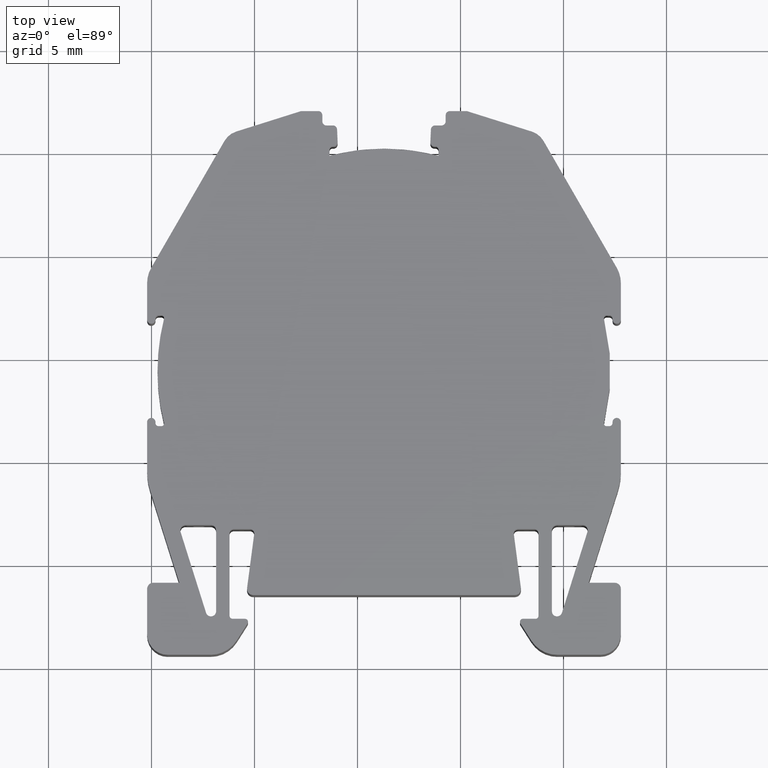
[diagram: clean part render]
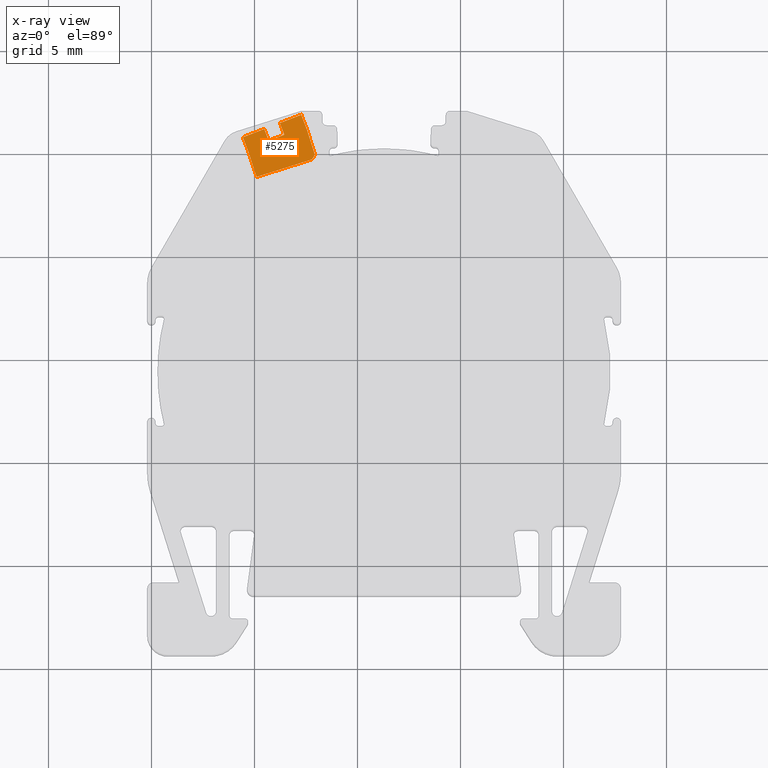
[diagram: x-ray — body ghosted, one internal face saturated and labeled with its STEP entity id]
A machine part, top view, then the same camera in x-ray: the body is ghosted and one INTERNAL B-rep face — a face not visible from any outside direction — is saturated and labeled: STEP entity #5275.
In plain terms, the highlighted planar face has unit normal (0, 0, 1).
Its self-contained STEP definition (entity closure, byte-faithful):
#1390 = ORIENTED_EDGE ( 'NONE', *, *, #5601, .F. ) ;
#1395 = ORIENTED_EDGE ( 'NONE', *, *, #5625, .T. ) ;
#1423 = ORIENTED_EDGE ( 'NONE', *, *, #5602, .T. ) ;
#1424 = ORIENTED_EDGE ( 'NONE', *, *, #5631, .T. ) ;
#1433 = ORIENTED_EDGE ( 'NONE', *, *, #5613, .T. ) ;
#1453 = ORIENTED_EDGE ( 'NONE', *, *, #5621, .F. ) ;
#1457 = ORIENTED_EDGE ( 'NONE', *, *, #5585, .T. ) ;
#1466 = ORIENTED_EDGE ( 'NONE', *, *, #5531, .T. ) ;
#1487 = ORIENTED_EDGE ( 'NONE', *, *, #5589, .T. ) ;
#1488 = ORIENTED_EDGE ( 'NONE', *, *, #5556, .T. ) ;
#1491 = ORIENTED_EDGE ( 'NONE', *, *, #5586, .T. ) ;
#1492 = ORIENTED_EDGE ( 'NONE', *, *, #5566, .T. ) ;
#2164 = CARTESIAN_POINT ( 'NONE',  ( 287.5503515056036000, 456.0987432950590800, -46.62999999999999500 ) ) ;
#2167 = CARTESIAN_POINT ( 'NONE',  ( 284.6917076357059400, 455.0740607454300200, -46.62999999999999500 ) ) ;
#2171 = CARTESIAN_POINT ( 'NONE',  ( 286.2285795155161700, 456.4355953829590900, -46.62999999999999500 ) ) ;
#2180 = CARTESIAN_POINT ( 'NONE',  ( 284.4335445907127000, 455.7465660464790700, -46.62999999999999500 ) ) ;
#2199 = CARTESIAN_POINT ( 'NONE',  ( 285.6904381836150200, 455.5786382979360400, -46.62999999999999500 ) ) ;
#2203 = CARTESIAN_POINT ( 'NONE',  ( 285.4728342311639700, 456.1454996262940500, -46.62999999999999500 ) ) ;
#2205 = CARTESIAN_POINT ( 'NONE',  ( 286.4461834679673300, 455.8687340546004500, -46.62999999999999500 ) ) ;
#2214 = CARTESIAN_POINT ( 'NONE',  ( 287.7792739594096900, 454.6665935811438400, -46.63000000000000300 ) ) ;
#2218 = CARTESIAN_POINT ( 'NONE',  ( 287.7981313201856900, 454.6873959841629500, -46.62999999999999500 ) ) ;
#2220 = CARTESIAN_POINT ( 'NONE',  ( 285.0987159988704900, 453.8214169026722400, -46.63000000000000300 ) ) ;
#2232 = CARTESIAN_POINT ( 'NONE',  ( 287.9188952231128800, 454.9298719561544400, -46.62999999999999500 ) ) ;
#2242 = CARTESIAN_POINT ( 'NONE',  ( 287.2678512325050500, 456.8345858087341800, -46.62999999999999500 ) ) ;
#2508 = EDGE_LOOP ( 'NONE', ( #1457, #1390, #1487, #1453, #1395, #1423, #1433, #1466, #1424, #1488, #1492, #1491 ) ) ;
#2844 = VERTEX_POINT ( 'NONE', #2171 ) ;
#2852 = VERTEX_POINT ( 'NONE', #2180 ) ;
#2860 = VERTEX_POINT ( 'NONE', #2203 ) ;
#2884 = VERTEX_POINT ( 'NONE', #2199 ) ;
#2892 = VERTEX_POINT ( 'NONE', #2205 ) ;
#2895 = VERTEX_POINT ( 'NONE', #2164 ) ;
#2897 = VERTEX_POINT ( 'NONE', #2167 ) ;
#2902 = VERTEX_POINT ( 'NONE', #2214 ) ;
#2908 = VERTEX_POINT ( 'NONE', #2218 ) ;
#2917 = VERTEX_POINT ( 'NONE', #2242 ) ;
#2939 = VERTEX_POINT ( 'NONE', #2232 ) ;
#2943 = VERTEX_POINT ( 'NONE', #2220 ) ;
#3266 = LINE ( 'NONE', #3298, #5953 ) ;
#3294 = DIRECTION ( 'NONE',  ( 0.3583769576644216200, -0.9335769685543841000, -0.0000000000000000000 ) ) ;
#3298 = CARTESIAN_POINT ( 'NONE',  ( 286.4461834679675000, 455.8687340546000000, -46.62999999999999500 ) ) ;
#3328 = CARTESIAN_POINT ( 'NONE',  ( 285.4728342311639700, 456.1454996262940500, -46.62999999999999500 ) ) ;
#3354 = LINE ( 'NONE', #3328, #5981 ) ;
#3364 = DIRECTION ( 'NONE',  ( -0.3583769576645439700, 0.9335769685543370300, -0.0000000000000000000 ) ) ;
#3379 = DIRECTION ( 'NONE',  ( -0.9335841336114371100, -0.3583582920332421000, -0.0000000000000000000 ) ) ;
#3395 = CARTESIAN_POINT ( 'NONE',  ( 284.4335445907124700, 455.7465660464790200, -46.62999999999999500 ) ) ;
#3400 = LINE ( 'NONE', #3395, #6011 ) ;
#3422 = LINE ( 'NONE', #3455, #5989 ) ;
#3429 = LINE ( 'NONE', #3449, #5993 ) ;
#3437 = DIRECTION ( 'NONE',  ( 0.3583830088338618700, -0.9335746456385734000, 0.0000000000000000000 ) ) ;
#3440 = DIRECTION ( 'NONE',  ( 0.3090167926714625900, -0.9510565818325650300, -0.0000000000000000000 ) ) ;
#3442 = CARTESIAN_POINT ( 'NONE',  ( 287.7792739594096900, 454.6665935811438400, -46.62999999999999500 ) ) ;
#3449 = CARTESIAN_POINT ( 'NONE',  ( 284.4335445907125900, 455.7465660464790700, -46.62999999999999500 ) ) ;
#3450 = LINE ( 'NONE', #3442, #6019 ) ;
#3455 = CARTESIAN_POINT ( 'NONE',  ( 286.5153707832129700, 449.4613986486934900, -46.62999999999999500 ) ) ;
#3460 = DIRECTION ( 'NONE',  ( 0.6716207743182435200, 0.7408950907545298600, 0.0000000000000000000 ) ) ;
#3467 = LINE ( 'NONE', #3468, #6036 ) ;
#3468 = CARTESIAN_POINT ( 'NONE',  ( 288.0452520890557900, 454.7504561632889600, -46.63000000000001000 ) ) ;
#3475 = CARTESIAN_POINT ( 'NONE',  ( 287.2678512325050500, 456.8345858087341800, -46.62999999999999500 ) ) ;
#3479 = DIRECTION ( 'NONE',  ( -0.9537169507488712000, -0.3007057995022297000, 0.0000000000000000000 ) ) ;
#3483 = DIRECTION ( 'NONE',  ( -0.3584086376727979000, 0.9335648067710827800, -0.0000000000000000000 ) ) ;
#3505 = LINE ( 'NONE', #3475, #6034 ) ;
#3506 = LINE ( 'NONE', #3516, #6082 ) ;
#3516 = CARTESIAN_POINT ( 'NONE',  ( 287.2678512325050500, 456.8345858087341800, -46.62999999999999500 ) ) ;
#3517 = DIRECTION ( 'NONE',  ( -0.9335649807921840800, -0.3584081843910501000, 0.0000000000000000000 ) ) ;
#3519 = LINE ( 'NONE', #3572, #5950 ) ;
#3552 = LINE ( 'NONE', #3578, #6047 ) ;
#3560 = DIRECTION ( 'NONE',  ( 1.000000000000000000, 0.0000000000000000000, 0.0000000000000000000 ) ) ;
#3566 = DIRECTION ( 'NONE',  ( -0.3007057995022982500, 0.9537169507488495500, 0.0000000000000000000 ) ) ;
#3571 = DIRECTION ( 'NONE',  ( -0.0000000000000000000, -0.0000000000000000000, -1.000000000000000000 ) ) ;
#3572 = CARTESIAN_POINT ( 'NONE',  ( 286.4461834679673900, 455.8687340546003400, -46.62999999999999500 ) ) ;
#3573 = DIRECTION ( 'NONE',  ( -0.9335835995825596500, -0.3583596832659485800, 0.0000000000000000000 ) ) ;
#3578 = CARTESIAN_POINT ( 'NONE',  ( 287.9188952231128800, 454.9298719561543900, -46.62999999999999500 ) ) ;
#3582 = CARTESIAN_POINT ( 'NONE',  ( 287.4276837748084900, 455.0232063713219800, -46.62999999999999500 ) ) ;
#3918 = PLANE ( 'NONE',  #6523 ) ;
#3923 = CARTESIAN_POINT ( 'NONE',  ( 287.7479318646965100, 453.8875509664509300, -46.62999999999999500 ) ) ;
#3933 = FACE_OUTER_BOUND ( 'NONE', #2508, .T. ) ;
#3942 = DIRECTION ( 'NONE',  ( 0.0000000000000000000, 0.0000000000000000000, 1.000000000000000000 ) ) ;
#3961 = DIRECTION ( 'NONE',  ( 1.000000000000000000, 0.0000000000000000000, -0.0000000000000000000 ) ) ;
#5275 = ADVANCED_FACE ( 'NONE', ( #3933 ), #3918, .T. ) ;
#5531 = EDGE_CURVE ( 'NONE', #2844, #2892, #3266, .T. ) ;
#5556 = EDGE_CURVE ( 'NONE', #2884, #2860, #3354, .T. ) ;
#5566 = EDGE_CURVE ( 'NONE', #2860, #2852, #3400, .T. ) ;
#5585 = EDGE_CURVE ( 'NONE', #2897, #2943, #3422, .T. ) ;
#5586 = EDGE_CURVE ( 'NONE', #2852, #2897, #3429, .T. ) ;
#5589 = EDGE_CURVE ( 'NONE', #2902, #2908, #3450, .T. ) ;
#5601 = EDGE_CURVE ( 'NONE', #2902, #2943, #3467, .T. ) ;
#5602 = EDGE_CURVE ( 'NONE', #2895, #2917, #3505, .T. ) ;
#5613 = EDGE_CURVE ( 'NONE', #2917, #2844, #3506, .T. ) ;
#5621 = EDGE_CURVE ( 'NONE', #2939, #2908, #5894, .T. ) ;
#5625 = EDGE_CURVE ( 'NONE', #2939, #2895, #3552, .T. ) ;
#5631 = EDGE_CURVE ( 'NONE', #2892, #2884, #3519, .T. ) ;
#5894 = CIRCLE ( 'NONE', #5934, 0.4999999999999449300 ) ;
#5934 = AXIS2_PLACEMENT_3D ( 'NONE', #3582, #3571, #3560 ) ;
#5950 = VECTOR ( 'NONE', #3573, 1000.000000000000100 ) ;
#5953 = VECTOR ( 'NONE', #3294, 1000.000000000000000 ) ;
#5981 = VECTOR ( 'NONE', #3364, 1000.000000000000100 ) ;
#5989 = VECTOR ( 'NONE', #3440, 999.9999999999998900 ) ;
#5993 = VECTOR ( 'NONE', #3437, 1000.000000000000200 ) ;
#6011 = VECTOR ( 'NONE', #3379, 1000.000000000000000 ) ;
#6019 = VECTOR ( 'NONE', #3460, 1000.000000000000100 ) ;
#6034 = VECTOR ( 'NONE', #3483, 1000.000000000000000 ) ;
#6036 = VECTOR ( 'NONE', #3479, 1000.000000000000100 ) ;
#6047 = VECTOR ( 'NONE', #3566, 1000.000000000000100 ) ;
#6082 = VECTOR ( 'NONE', #3517, 1000.000000000000100 ) ;
#6523 = AXIS2_PLACEMENT_3D ( 'NONE', #3923, #3942, #3961 ) ;